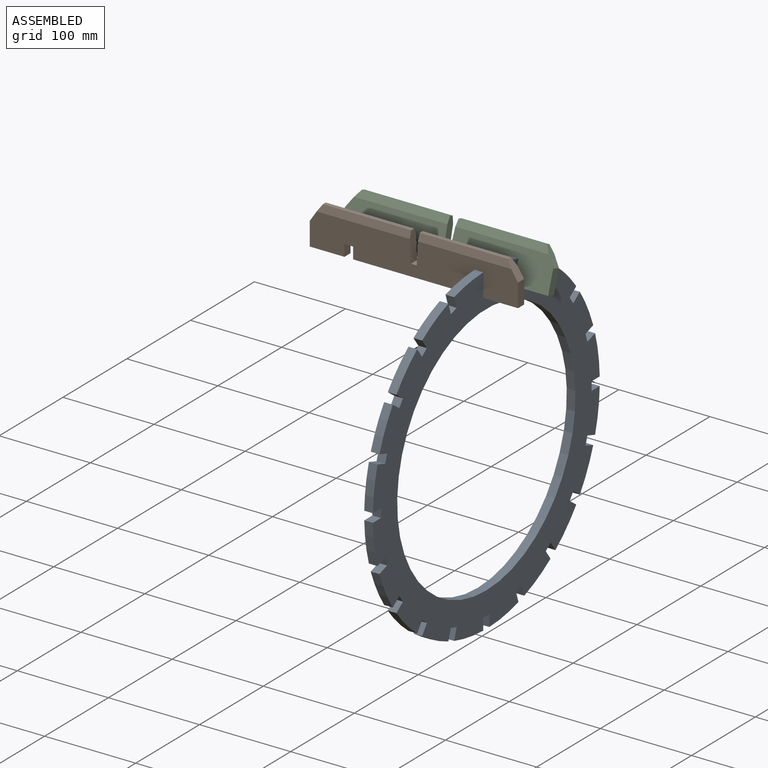
[diagram: assembled view]
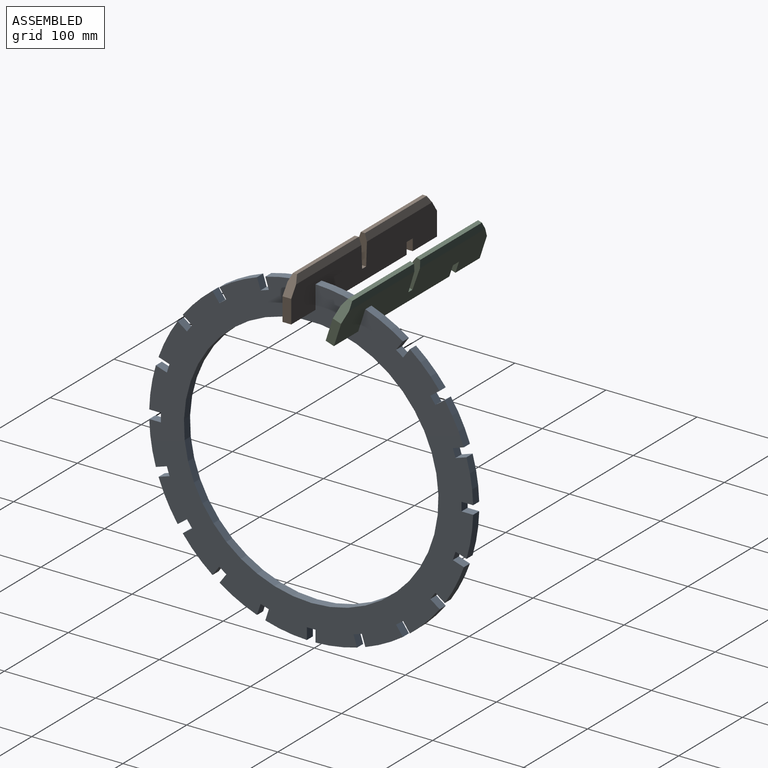
[diagram: assembled view, second angle]
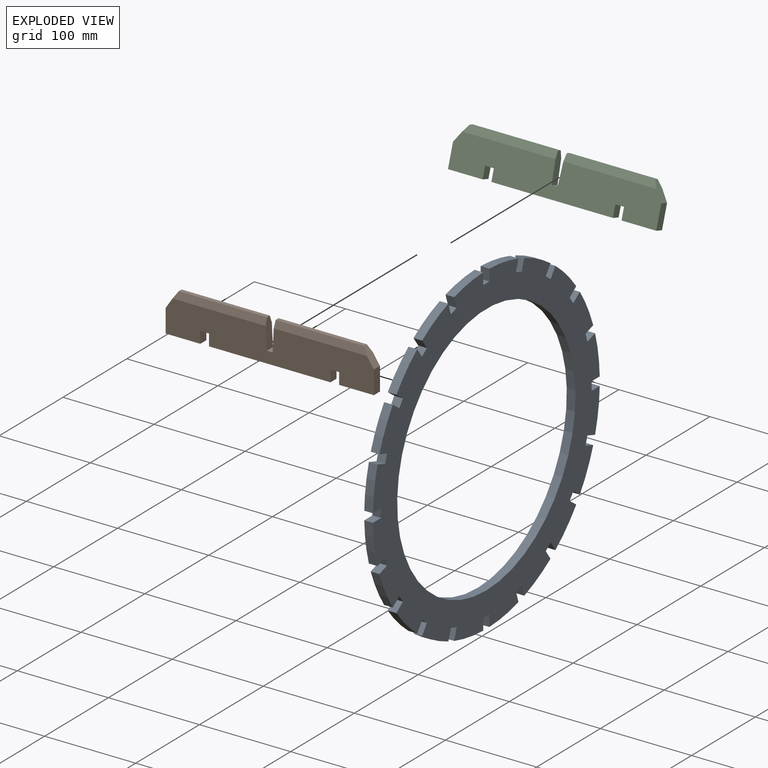
[diagram: exploded view]
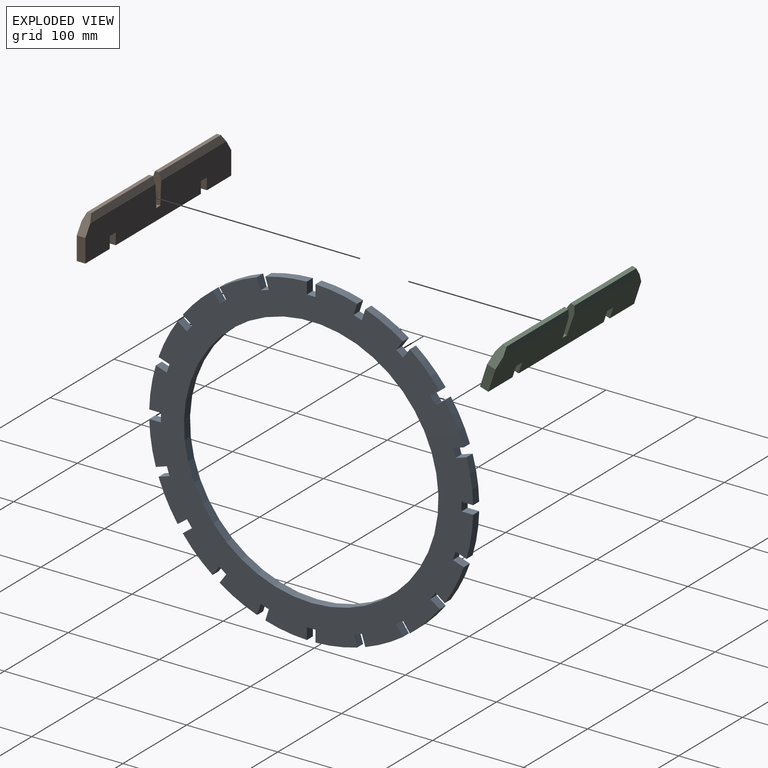
[diagram: exploded view, second angle]
ASSEMBLY  parts=3 mates=6
PART A: 83 faces, bbox 9.5x355.5x355.5 mm
  f0: plane 12.7x9.53mm, normal (0,1,0), area 121mm2, adj f1,f79,f81,f82
  f1: cylinder r=177.8mm len=45.63mm, axis (-1,0,0), area 441.3mm2, adj f0,f2,f81,f82
  f2: plane 12.08x9.53mm, normal (0,-0.95,-0.31), area 121mm2, adj f1,f3,f81,f82
  f3: plane 9.53x9.06mm, normal (0,-0.31,0.95), area 90.7mm2, adj f2,f4,f81,f82
  f4: plane 12.08x9.53mm, normal (0,0.95,0.31), area 121mm2, adj f3,f5,f81,f82
  f5: cylinder r=177.8mm len=41.17mm, axis (-1,0,0), area 441.3mm2, adj f4,f6,f81,f82
  f6: plane 10.27x9.53mm, normal (0,-0.81,-0.59), area 121mm2, adj f5,f7,f81,f82
  f7: plane 9.53x7.71mm, normal (0,-0.59,0.81), area 90.7mm2, adj f6,f8,f81,f82
  f8: plane 10.27x9.53mm, normal (0,0.81,0.59), area 121mm2, adj f7,f9,f81,f82
  f9: cylinder r=177.8mm len=32.67mm, axis (-1,0,0), area 441.3mm2, adj f8,f10,f81,f82
  f10: plane 10.27x9.53mm, normal (0,-0.59,-0.81), area 121mm2, adj f9,f11,f81,f82
  f11: plane 9.53x7.71mm, normal (0,-0.81,0.59), area 90.7mm2, adj f10,f12,f81,f82
  f12: plane 10.27x9.53mm, normal (0,0.59,0.81), area 121mm2, adj f11,f13,f81,f82
  f13: cylinder r=177.8mm len=41.17mm, axis (-1,0,0), area 441.3mm2, adj f12,f14,f81,f82
  f14: plane 12.08x9.53mm, normal (0,-0.31,-0.95), area 121mm2, adj f13,f15,f81,f82
  f15: plane 9.53x9.06mm, normal (0,-0.95,0.31), area 90.7mm2, adj f14,f16,f81,f82
  f16: plane 12.08x9.53mm, normal (0,0.31,0.95), area 121mm2, adj f15,f17,f81,f82
  f17: cylinder r=177.8mm len=45.63mm, axis (-1,0,0), area 441.3mm2, adj f16,f18,f81,f82
  f18: plane 12.7x9.53mm, normal (0,0,-1), area 121mm2, adj f17,f19,f81,f82
  f19: plane 9.53x9.53mm, normal (0,-1,0), area 90.7mm2, adj f18,f20,f81,f82
  f20: plane 12.7x9.53mm, normal (0,0,1), area 121mm2, adj f19,f21,f81,f82
  f21: cylinder r=177.8mm len=45.63mm, axis (-1,0,0), area 441.3mm2, adj f20,f22,f81,f82
  f22: plane 12.08x9.53mm, normal (0,0.31,-0.95), area 121mm2, adj f21,f23,f81,f82
  f23: plane 9.53x9.06mm, normal (0,-0.95,-0.31), area 90.7mm2, adj f22,f24,f81,f82
  f24: plane 12.08x9.53mm, normal (0,-0.31,0.95), area 121mm2, adj f23,f25,f81,f82
  f25: cylinder r=177.8mm len=41.17mm, axis (-1,0,0), area 441.3mm2, adj f24,f26,f81,f82
  f26: plane 10.27x9.53mm, normal (0,0.59,-0.81), area 121mm2, adj f25,f27,f81,f82
  f27: plane 9.53x7.71mm, normal (0,-0.81,-0.59), area 90.7mm2, adj f26,f28,f81,f82
  f28: plane 10.27x9.53mm, normal (0,-0.59,0.81), area 121mm2, adj f27,f29,f81,f82
  f29: cylinder r=177.8mm len=32.67mm, axis (-1,0,0), area 441.3mm2, adj f28,f30,f81,f82
  f30: plane 10.27x9.53mm, normal (0,0.81,-0.59), area 121mm2, adj f29,f31,f81,f82
  f31: plane 9.53x7.71mm, normal (0,-0.59,-0.81), area 90.7mm2, adj f30,f32,f81,f82
  f32: plane 10.27x9.53mm, normal (0,-0.81,0.59), area 121mm2, adj f31,f33,f81,f82
  f33: cylinder r=177.8mm len=41.17mm, axis (-1,0,0), area 441.3mm2, adj f32,f34,f81,f82
  f34: plane 12.08x9.53mm, normal (0,0.95,-0.31), area 121mm2, adj f33,f35,f81,f82
  f35: plane 9.53x9.06mm, normal (0,-0.31,-0.95), area 90.7mm2, adj f34,f36,f81,f82
  f36: plane 12.08x9.53mm, normal (0,-0.95,0.31), area 121mm2, adj f35,f37,f81,f82
  f37: cylinder r=177.8mm len=45.63mm, axis (-1,0,0), area 441.3mm2, adj f36,f38,f81,f82
  f38: plane 12.7x9.53mm, normal (0,1,0), area 121mm2, adj f37,f39,f81,f82
  f39: plane 9.53x9.53mm, normal (0,0,-1), area 90.7mm2, adj f38,f40,f81,f82
  f40: plane 12.7x9.53mm, normal (0,-1,0), area 121mm2, adj f39,f41,f81,f82
  f41: cylinder r=177.8mm len=45.63mm, axis (-1,0,0), area 441.3mm2, adj f40,f42,f81,f82
  f42: plane 12.08x9.53mm, normal (0,0.95,0.31), area 121mm2, adj f41,f43,f81,f82
  f43: plane 9.53x9.06mm, normal (0,0.31,-0.95), area 90.7mm2, adj f42,f44,f81,f82
  f44: plane 12.08x9.53mm, normal (0,-0.95,-0.31), area 121mm2, adj f43,f45,f81,f82
  f45: cylinder r=177.8mm len=41.17mm, axis (-1,0,0), area 441.3mm2, adj f44,f46,f81,f82
  f46: plane 10.27x9.53mm, normal (0,0.81,0.59), area 121mm2, adj f45,f47,f81,f82
  f47: plane 9.53x7.71mm, normal (0,0.59,-0.81), area 90.7mm2, adj f46,f48,f81,f82
  f48: plane 10.27x9.53mm, normal (0,-0.81,-0.59), area 121mm2, adj f47,f49,f81,f82
  f49: cylinder r=177.8mm len=32.67mm, axis (-1,0,0), area 441.3mm2, adj f48,f50,f81,f82
  f50: plane 10.27x9.53mm, normal (0,0.59,0.81), area 121mm2, adj f49,f51,f81,f82
  f51: plane 9.53x7.71mm, normal (0,0.81,-0.59), area 90.7mm2, adj f50,f52,f81,f82
  f52: plane 10.27x9.53mm, normal (0,-0.59,-0.81), area 121mm2, adj f51,f53,f81,f82
  f53: cylinder r=177.8mm len=41.17mm, axis (-1,0,0), area 441.3mm2, adj f52,f54,f81,f82
  f54: plane 12.08x9.53mm, normal (0,0.31,0.95), area 121mm2, adj f53,f55,f81,f82
  f55: plane 9.53x9.06mm, normal (0,0.95,-0.31), area 90.7mm2, adj f54,f56,f81,f82
  f56: plane 12.08x9.53mm, normal (0,-0.31,-0.95), area 121mm2, adj f55,f57,f81,f82
  f57: cylinder r=177.8mm len=45.63mm, axis (-1,0,0), area 441.3mm2, adj f56,f58,f81,f82
  f58: plane 12.7x9.53mm, normal (0,0,1), area 121mm2, adj f57,f59,f81,f82
  f59: plane 9.53x9.53mm, normal (0,1,0), area 90.7mm2, adj f58,f60,f81,f82
  f60: plane 12.7x9.53mm, normal (0,0,-1), area 121mm2, adj f59,f61,f81,f82
  f61: cylinder r=177.8mm len=45.63mm, axis (-1,0,0), area 441.3mm2, adj f60,f62,f81,f82
  f62: plane 12.08x9.53mm, normal (0,-0.31,0.95), area 121mm2, adj f61,f63,f81,f82
  f63: plane 9.53x9.06mm, normal (0,0.95,0.31), area 90.7mm2, adj f62,f64,f81,f82
  f64: plane 12.08x9.53mm, normal (0,0.31,-0.95), area 121mm2, adj f63,f65,f81,f82
  f65: cylinder r=177.8mm len=41.17mm, axis (-1,0,0), area 441.3mm2, adj f64,f66,f81,f82
  f66: plane 10.27x9.53mm, normal (0,-0.59,0.81), area 121mm2, adj f65,f67,f81,f82
  f67: plane 9.53x7.71mm, normal (0,0.81,0.59), area 90.7mm2, adj f66,f68,f81,f82
  f68: plane 10.27x9.53mm, normal (0,0.59,-0.81), area 121mm2, adj f67,f69,f81,f82
  f69: cylinder r=177.8mm len=32.67mm, axis (-1,0,0), area 441.3mm2, adj f68,f70,f81,f82
  f70: plane 10.27x9.53mm, normal (0,-0.81,0.59), area 121mm2, adj f69,f71,f81,f82
  f71: plane 9.53x7.71mm, normal (0,0.59,0.81), area 90.7mm2, adj f70,f72,f81,f82
  f72: plane 10.27x9.53mm, normal (0,0.81,-0.59), area 121mm2, adj f71,f73,f81,f82
  f73: cylinder r=177.8mm len=41.17mm, axis (-1,0,0), area 441.3mm2, adj f72,f74,f81,f82
  f74: plane 12.08x9.53mm, normal (0,-0.95,0.31), area 121mm2, adj f73,f75,f81,f82
  f75: plane 9.53x9.06mm, normal (0,0.31,0.95), area 90.7mm2, adj f74,f76,f81,f82
  f76: plane 12.08x9.53mm, normal (0,0.95,-0.31), area 121mm2, adj f75,f77,f81,f82
  f77: cylinder r=177.8mm len=45.63mm, axis (-1,0,0), area 441.3mm2, adj f76,f78,f81,f82
  f78: plane 12.7x9.53mm, normal (0,-1,0), area 121mm2, adj f77,f79,f81,f82
  f79: plane 9.53x9.53mm, normal (0,0,1), area 90.7mm2, adj f0,f78,f81,f82
  f80: cylinder r=139.7mm len=279.4mm, axis (-1,0,0), area 8360.7mm2, adj f81,f82
  f81: plane 355.47x355.47mm, normal (1,0,0), area 35575.6mm2, adj f0,f1,f2,f3,f4,f5,f6,f7
  f82: plane 355.47x355.47mm, normal (-1,0,0), area 35575.6mm2, adj f0,f1,f2,f3,f4,f5,f6,f7
PART B: 24 faces, bbox 228.6x9.5x44.5 mm
  f0: plane 25.4x9.53mm, normal (1,0,0), area 241.9mm2, adj f1,f17,f18,f19
  f1: plane 19.05x12.7mm, normal (0.83,0,0.55), area 194.8mm2, adj f0,f2,f18,f19,f20,f23
  f2: plane 96.84x4.45mm, normal (0,0,1), area 430.4mm2, adj f1,f3,f20,f23
  f3: plane 31.75x9.53mm, normal (-1,0,0.05), area 283.4mm2, adj f2,f4,f18,f19,f20,f23
  f4: plane 9.53x6.35mm, normal (0,0,1), area 60.5mm2, adj f3,f5,f18,f19
  f5: plane 31.75x9.53mm, normal (1,0,0.05), area 283.4mm2, adj f4,f6,f18,f19,f21,f22
  f6: plane 96.84x4.45mm, normal (0,0,1), area 430.4mm2, adj f5,f7,f21,f22
  f7: plane 19.05x12.7mm, normal (-0.83,0,0.55), area 194.8mm2, adj f6,f8,f18,f19,f21,f22
  f8: plane 25.4x9.53mm, normal (-1,0,0), area 241.9mm2, adj f7,f9,f18,f19
  f9: plane 38.1x9.53mm, normal (0,0,-1), area 362.9mm2, adj f8,f10,f18,f19
  f10: plane 12.7x9.53mm, normal (1,0,0), area 121mm2, adj f9,f11,f18,f19
  f11: plane 9.53x9.53mm, normal (0,0,-1), area 90.7mm2, adj f10,f12,f18,f19
  f12: plane 12.7x9.53mm, normal (-1,0,0), area 121mm2, adj f11,f13,f18,f19
  f13: plane 133.35x9.53mm, normal (0,0,-1), area 1270.2mm2, adj f12,f14,f18,f19
  f14: plane 12.7x9.53mm, normal (1,0,0), area 121mm2, adj f13,f15,f18,f19
  f15: plane 9.53x9.53mm, normal (0,0,-1), area 90.7mm2, adj f14,f16,f18,f19
  f16: plane 12.7x9.53mm, normal (-1,0,0), area 121mm2, adj f15,f17,f18,f19
  f17: plane 38.1x9.53mm, normal (0,0,-1), area 362.9mm2, adj f0,f16,f18,f19
  f18: plane 228.6x36.83mm, normal (0,-1,0), area 7908mm2, adj f0,f1,f3,f4,f5,f7,f8,f9
  f19: plane 228.6x36.83mm, normal (0,1,0), area 7908mm2, adj f0,f1,f3,f4,f5,f7,f8,f9
  f20: plane 102.3x7.62mm, normal (0,-0.95,0.32), area 799.7mm2, adj f1,f2,f3,f18
  f21: plane 102.3x7.62mm, normal (0,-0.95,0.32), area 799.7mm2, adj f5,f6,f7,f18
  f22: plane 102.3x7.62mm, normal (0,0.95,0.32), area 799.7mm2, adj f5,f6,f7,f19
  f23: plane 102.3x7.62mm, normal (0,0.95,0.32), area 799.7mm2, adj f1,f2,f3,f19
PART C: same geometry as B
PLACE A at identity fixed
PLACE B t=(-71.44,0,152.34)mm
PLACE C rot(axis=(-1,0,0),18deg) t=(-71.44,47.07,144.88)mm
MATE planar B.f16 <-> A.f81  axis (-1,0,0) through (4.76,0,165.04)mm
MATE planar C.f15 <-> A.f75  axis (0,-0.31,-0.95) through (0,51,156.96)mm
MATE planar B.f19 <-> A.f78  axis (0,1,0) through (0,4.76,165.04)mm
MATE planar C.f16 <-> A.f81  axis (-1,0,0) through (4.76,51,156.96)mm
MATE planar B.f15 <-> A.f79  axis (0,0,-1) through (0,0,165.04)mm
MATE planar C.f18 <-> A.f76  axis (0,-0.95,0.31) through (0,46.47,158.43)mm
